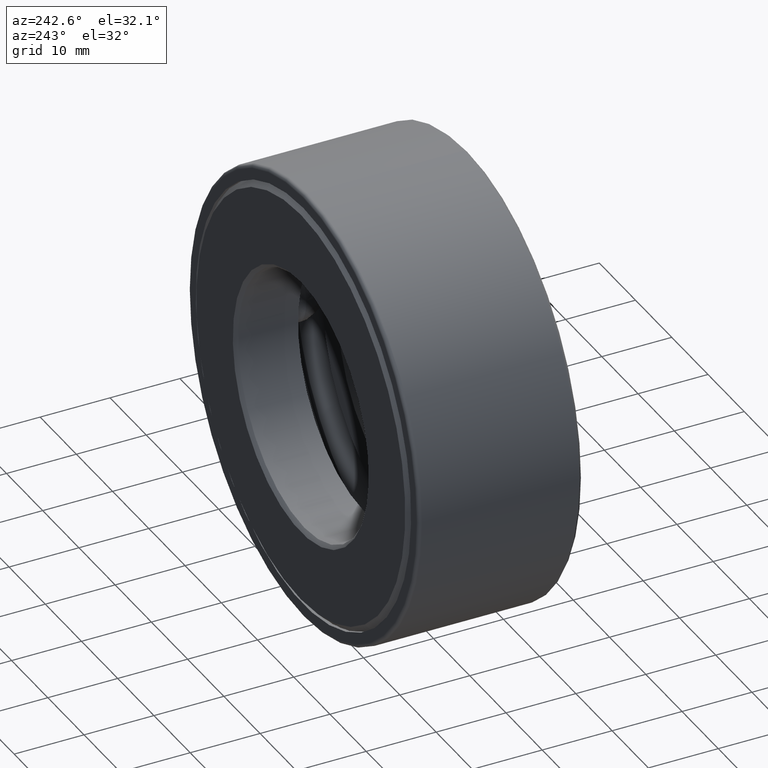
[diagram: clean part render]
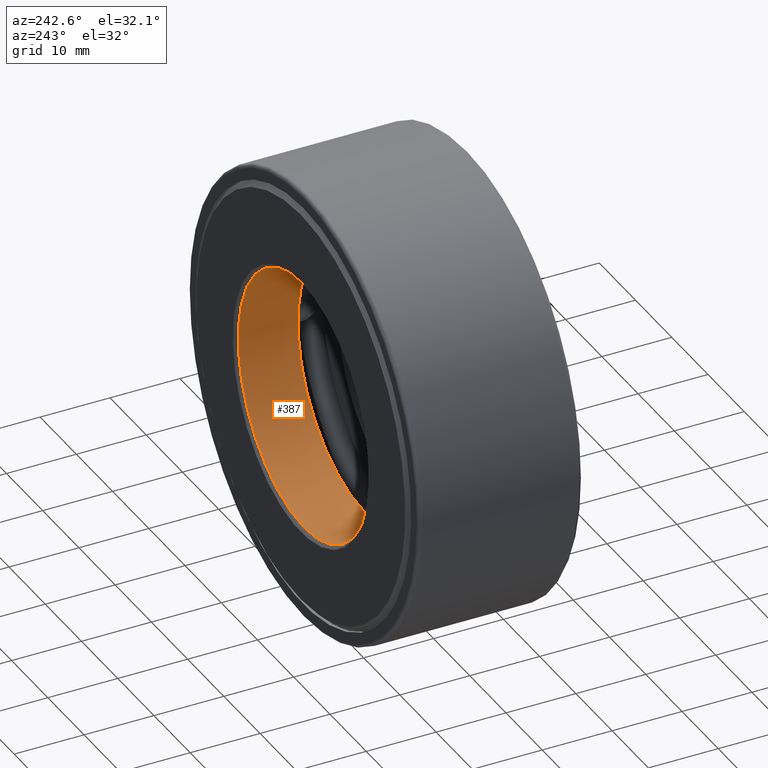
[diagram: same view with one face highlighted and labeled with its STEP entity id]
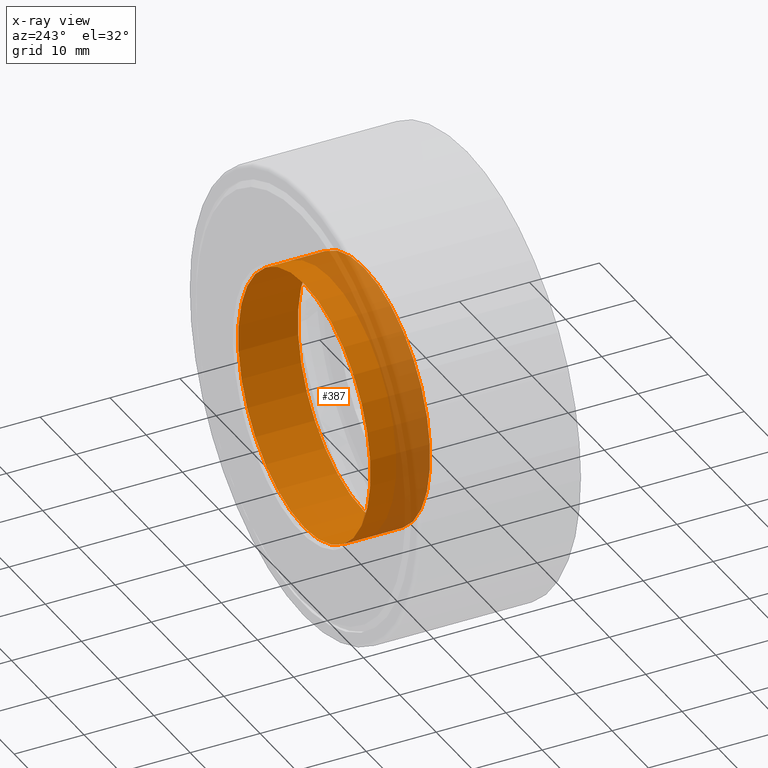
[diagram: x-ray of the same camera — body ghosted, the highlighted face saturated]
A machine part, auxiliary view. The second image highlights one B-rep face of the part: STEP entity #387.
The next image is the same camera in x-ray: the body ghosted, the highlighted face saturated — about 29% of this face is hidden behind the body in this view.
In plain terms, the highlighted cylindrical surface (bore or boss wall) has radius 18.2562 mm, axis along (-0, 1, -0).
Its self-contained STEP definition (entity closure, byte-faithful):
#26 = VERTEX_POINT ( 'NONE', #572 ) ;
#41 = CARTESIAN_POINT ( 'NONE',  ( 0.0000000000000000000, 0.9174999999999995400, 0.0000000000000000000 ) ) ;
#77 = EDGE_CURVE ( 'NONE', #391, #391, #557, .T. ) ;
#86 = DIRECTION ( 'NONE',  ( 0.0000000000000000000, 0.0000000000000000000, 1.000000000000000000 ) ) ;
#154 = AXIS2_PLACEMENT_3D ( 'NONE', #41, #216, #86 ) ;
#163 = ORIENTED_EDGE ( 'NONE', *, *, #339, .F. ) ;
#205 = CARTESIAN_POINT ( 'NONE',  ( 0.0000000000000000000, 0.9174999999999995400, 0.7187500000000000000 ) ) ;
#216 = DIRECTION ( 'NONE',  ( -0.0000000000000000000, 1.000000000000000000, -0.0000000000000000000 ) ) ;
#225 = CARTESIAN_POINT ( 'NONE',  ( 0.0000000000000000000, 0.0000000000000000000, 0.0000000000000000000 ) ) ;
#227 = CYLINDRICAL_SURFACE ( 'NONE', #524, 0.7187500000000000000 ) ;
#228 = DIRECTION ( 'NONE',  ( 0.0000000000000000000, 0.0000000000000000000, 1.000000000000000000 ) ) ;
#242 = EDGE_LOOP ( 'NONE', ( #163 ) ) ;
#272 = DIRECTION ( 'NONE',  ( 0.0000000000000000000, 0.0000000000000000000, 1.000000000000000000 ) ) ;
#320 = DIRECTION ( 'NONE',  ( -0.0000000000000000000, 1.000000000000000000, -0.0000000000000000000 ) ) ;
#339 = EDGE_CURVE ( 'NONE', #26, #26, #605, .T. ) ;
#387 = ADVANCED_FACE ( 'NONE', ( #403, #474 ), #227, .F. ) ;
#391 = VERTEX_POINT ( 'NONE', #205 ) ;
#403 = FACE_OUTER_BOUND ( 'NONE', #565, .T. ) ;
#418 = AXIS2_PLACEMENT_3D ( 'NONE', #425, #320, #228 ) ;
#425 = CARTESIAN_POINT ( 'NONE',  ( 0.0000000000000000000, 0.5812499999999999300, 0.0000000000000000000 ) ) ;
#474 = FACE_OUTER_BOUND ( 'NONE', #242, .T. ) ;
#524 = AXIS2_PLACEMENT_3D ( 'NONE', #225, #606, #272 ) ;
#557 = CIRCLE ( 'NONE', #154, 0.7187500000000000000 ) ;
#564 = ORIENTED_EDGE ( 'NONE', *, *, #77, .T. ) ;
#565 = EDGE_LOOP ( 'NONE', ( #564 ) ) ;
#572 = CARTESIAN_POINT ( 'NONE',  ( 0.0000000000000000000, 0.5812499999999999300, 0.7187500000000000000 ) ) ;
#605 = CIRCLE ( 'NONE', #418, 0.7187500000000000000 ) ;
#606 = DIRECTION ( 'NONE',  ( -0.0000000000000000000, 1.000000000000000000, -0.0000000000000000000 ) ) ;